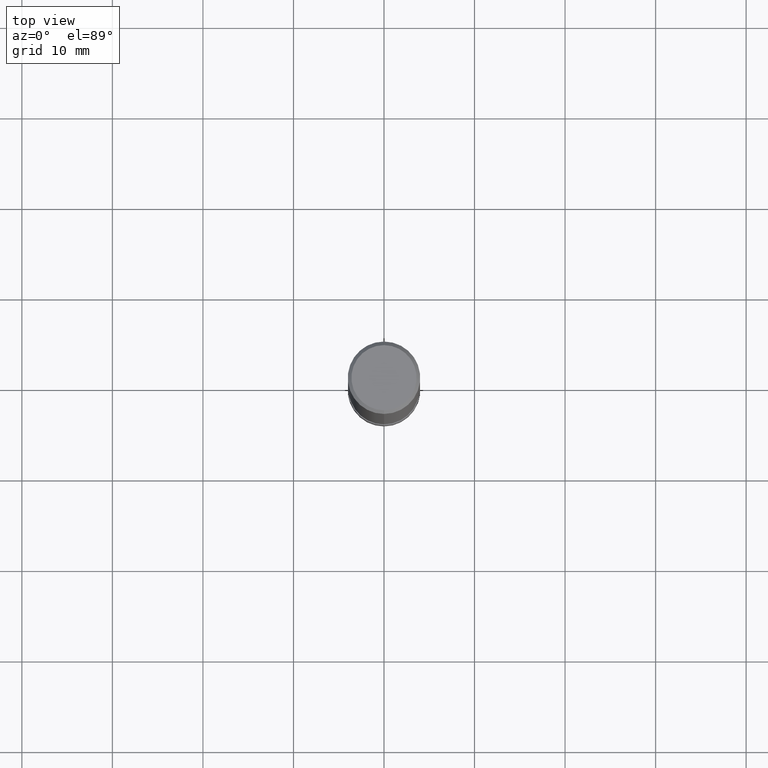
[diagram: clean part render]
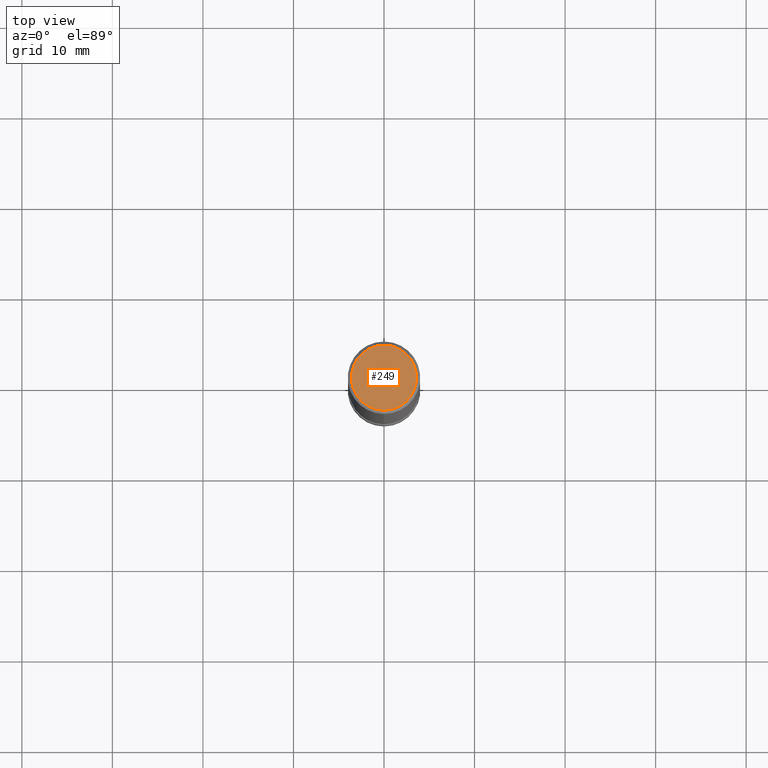
[diagram: same view with one face highlighted and labeled with its STEP entity id]
A machine part, top view. The second image highlights one B-rep face of the part: STEP entity #249.
In plain terms, the highlighted planar face has unit normal (-0, 0, 1).
Its self-contained STEP definition (entity closure, byte-faithful):
#139=EDGE_CURVE('',#191,#213,#330,.T.);
#191=VERTEX_POINT('',#390);
#213=VERTEX_POINT('',#413);
#249=ADVANCED_FACE('',(#455),#456,.T.);
#269=EDGE_CURVE('',#213,#191,#479,.T.);
#330=CIRCLE('',#540,3.6);
#390=CARTESIAN_POINT('',(4.40858287376056E-016,-3.6,0.0));
#413=CARTESIAN_POINT('',(0.0,3.6,0.0));
#455=FACE_OUTER_BOUND('',#697,.T.);
#456=PLANE('',#698);
#479=CIRCLE('',#725,3.6);
#540=AXIS2_PLACEMENT_3D('',#784,#785,#786);
#697=EDGE_LOOP('',(#937,#938));
#698=AXIS2_PLACEMENT_3D('',#939,#940,#941);
#725=AXIS2_PLACEMENT_3D('',#979,#980,#981);
#784=CARTESIAN_POINT('',(0.0,0.0,0.0));
#785=DIRECTION('',(0.0,0.0,-1.0));
#786=DIRECTION('',(0.0,1.0,0.0));
#937=ORIENTED_EDGE('',*,*,#269,.F.);
#938=ORIENTED_EDGE('',*,*,#139,.F.);
#939=CARTESIAN_POINT('',(0.0,1.8,0.0));
#940=DIRECTION('',(-0.0,0.0,1.0));
#941=DIRECTION('',(0.0,-1.0,0.0));
#979=CARTESIAN_POINT('',(0.0,0.0,0.0));
#980=DIRECTION('',(0.0,0.0,-1.0));
#981=DIRECTION('',(0.0,1.0,0.0));